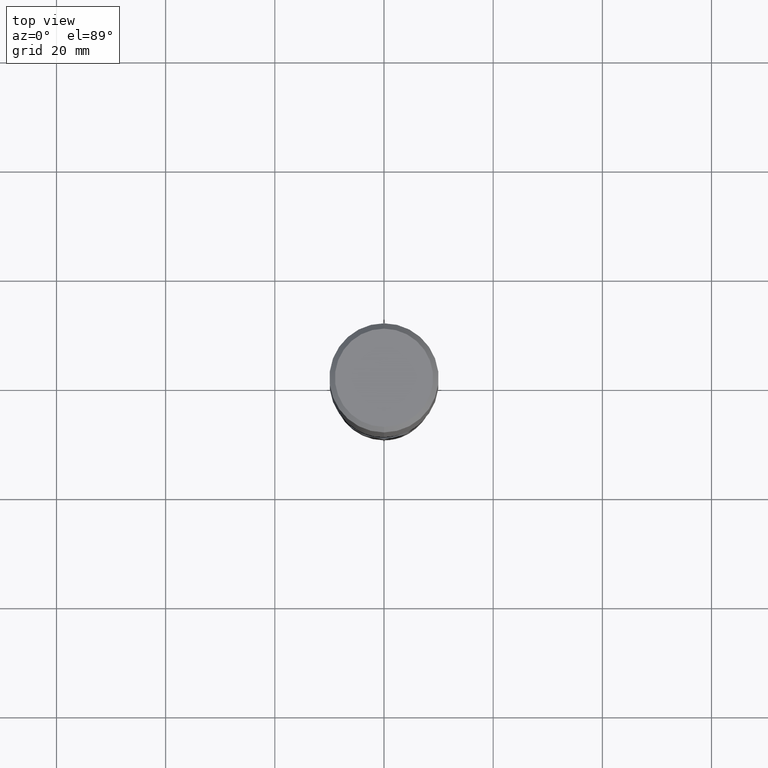
[diagram: clean part render]
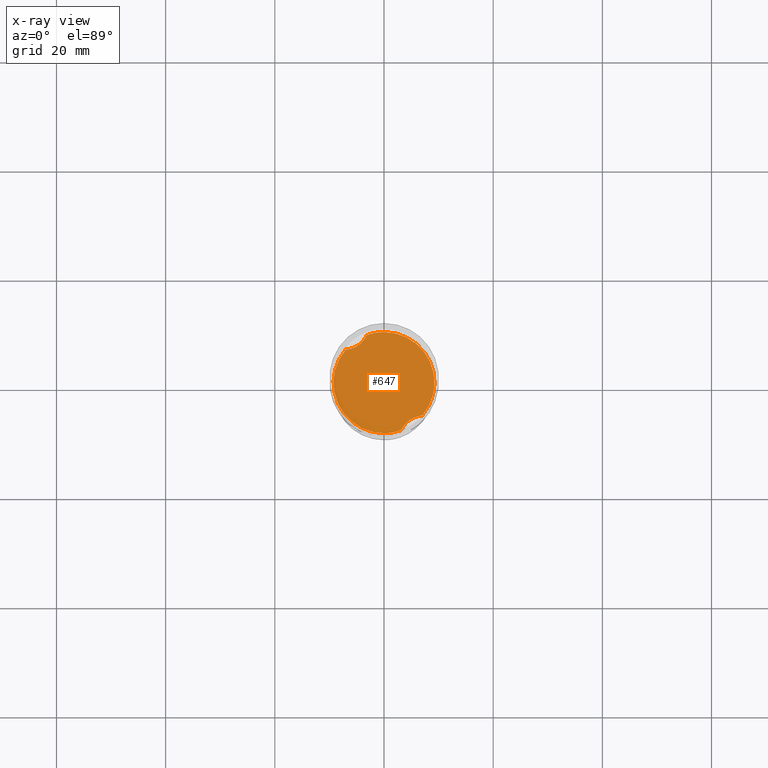
[diagram: x-ray — body ghosted, one internal face saturated and labeled with its STEP entity id]
A machine part, top view, then the same camera in x-ray: the body is ghosted and one INTERNAL B-rep face — a face not visible from any outside direction — is saturated and labeled: STEP entity #647.
In plain terms, the highlighted planar face has unit normal (-0, 0, 1).
Its self-contained STEP definition (entity closure, byte-faithful):
#373=VERTEX_POINT('',#914);
#413=EDGE_CURVE('',#573,#793,#958,.T.);
#463=EDGE_CURVE('',#671,#373,#1010,.T.);
#571=EDGE_CURVE('',#573,#709,#1128,.T.);
#573=VERTEX_POINT('',#1130);
#603=EDGE_CURVE('',#709,#649,#1163,.T.);
#625=EDGE_CURVE('',#373,#793,#1187,.T.);
#647=ADVANCED_FACE('',(#1210),#1211,.T.);
#649=VERTEX_POINT('',#1213);
#671=VERTEX_POINT('',#1236);
#709=VERTEX_POINT('',#1280);
#793=VERTEX_POINT('',#1371);
#799=EDGE_CURVE('',#671,#649,#1378,.T.);
#914=CARTESIAN_POINT('',(1.13264811961129E-015,-9.2499,-52.0));
#958=B_SPLINE_CURVE_WITH_KNOTS('',3,(#2993,#2994,#2995,#2996,#2997,#2998,#2999,#3000,#3001,#3002),.UNSPECIFIED.,.F.,.F.,(4,2,2,2,4),(0.0,2.00221085442419,3.83621783040036,5.6913921341514,7.93635265790548),.UNSPECIFIED.);
#1010=CIRCLE('',#3328,9.2499);
#1128=CIRCLE('',#4527,9.2499);
#1130=CARTESIAN_POINT('',(-3.14683328780019,8.69816591407595,-52.0));
#1163=CIRCLE('',#4989,9.2499);
#1187=CIRCLE('',#5035,9.2499);
#1210=FACE_OUTER_BOUND('',#5089,.T.);
#1211=PLANE('',#5090);
#1213=CARTESIAN_POINT('',(7.0109864580263,-6.03379804893831,-52.0));
#1236=CARTESIAN_POINT('',(3.14683328780019,-8.69816591407595,-52.0));
#1280=CARTESIAN_POINT('',(-1.1326480177754E-015,9.2499,-52.0));
#1371=CARTESIAN_POINT('',(-7.0109864580263,6.03379804893831,-52.0));
#1378=B_SPLINE_CURVE_WITH_KNOTS('',3,(#5628,#5629,#5630,#5631,#5632,#5633,#5634,#5635,#5636,#5637),.UNSPECIFIED.,.F.,.F.,(4,2,2,2,4),(0.0,2.00221085442422,3.83621783040042,5.69139213415149,7.9363526579056),.UNSPECIFIED.);
#2993=CARTESIAN_POINT('',(-2.89943752346292,9.2999,-52.0));
#2994=CARTESIAN_POINT('',(-3.11558283407681,8.66846608088585,-52.0));
#2995=CARTESIAN_POINT('',(-3.44278117830551,8.08577691064851,-51.9999999999762));
#2996=CARTESIAN_POINT('',(-4.28883240555131,7.13058525562253,-51.9999999999762));
#2997=CARTESIAN_POINT('',(-4.77466967935962,6.76152059449058,-52.0000000000013));
#2998=CARTESIAN_POINT('',(-5.87844389269498,6.22645177876874,-52.0000000000013));
#2999=CARTESIAN_POINT('',(-6.47813691855742,6.07225023021224,-52.0000000000002));
#3000=CARTESIAN_POINT('',(-7.83936623008484,5.97230708497563,-52.0000000000002));
#3001=CARTESIAN_POINT('',(-8.58738082828143,6.07811337657305,-52.0));
#3002=CARTESIAN_POINT('',(-9.2999,6.31072215952463,-52.0));
#3328=AXIS2_PLACEMENT_3D('',#5854,#5855,#5856);
#4527=AXIS2_PLACEMENT_3D('',#5971,#5972,#5973);
#4989=AXIS2_PLACEMENT_3D('',#6011,#6012,#6013);
#5035=AXIS2_PLACEMENT_3D('',#6037,#6038,#6039);
#5089=EDGE_LOOP('',(#6072,#6073,#6074,#6075,#6076,#6077));
#5090=AXIS2_PLACEMENT_3D('',#6078,#6079,#6080);
#5628=CARTESIAN_POINT('',(2.89943752346292,-9.2999,-52.0));
#5629=CARTESIAN_POINT('',(3.11558283407681,-8.66846608088584,-52.0));
#5630=CARTESIAN_POINT('',(3.44278117830551,-8.08577691064851,-51.9999999999762));
#5631=CARTESIAN_POINT('',(4.28883240555131,-7.13058525562253,-51.9999999999762));
#5632=CARTESIAN_POINT('',(4.77466967935962,-6.76152059449058,-52.0000000000013));
#5633=CARTESIAN_POINT('',(5.87844389269498,-6.22645177876873,-52.0000000000013));
#5634=CARTESIAN_POINT('',(6.47813691855742,-6.07225023021224,-52.0000000000002));
#5635=CARTESIAN_POINT('',(7.83936623008484,-5.97230708497563,-52.0000000000002));
#5636=CARTESIAN_POINT('',(8.58738082828142,-6.07811337657305,-52.0));
#5637=CARTESIAN_POINT('',(9.2999,-6.31072215952463,-52.0));
#5854=CARTESIAN_POINT('',(0.0,0.0,-52.0));
#5855=DIRECTION('',(0.0,0.0,-1.0));
#5856=DIRECTION('',(0.0,1.0,0.0));
#5971=CARTESIAN_POINT('',(0.0,0.0,-52.0));
#5972=DIRECTION('',(0.0,0.0,-1.0));
#5973=DIRECTION('',(0.0,1.0,0.0));
#6011=CARTESIAN_POINT('',(0.0,0.0,-52.0));
#6012=DIRECTION('',(0.0,0.0,-1.0));
#6013=DIRECTION('',(0.0,1.0,0.0));
#6037=CARTESIAN_POINT('',(0.0,0.0,-52.0));
#6038=DIRECTION('',(0.0,0.0,-1.0));
#6039=DIRECTION('',(0.0,1.0,0.0));
#6072=ORIENTED_EDGE('',*,*,#799,.T.);
#6073=ORIENTED_EDGE('',*,*,#603,.F.);
#6074=ORIENTED_EDGE('',*,*,#571,.F.);
#6075=ORIENTED_EDGE('',*,*,#413,.T.);
#6076=ORIENTED_EDGE('',*,*,#625,.F.);
#6077=ORIENTED_EDGE('',*,*,#463,.F.);
#6078=CARTESIAN_POINT('',(0.0,4.62495,-52.0));
#6079=DIRECTION('',(-0.0,0.0,1.0));
#6080=DIRECTION('',(0.0,-1.0,0.0));